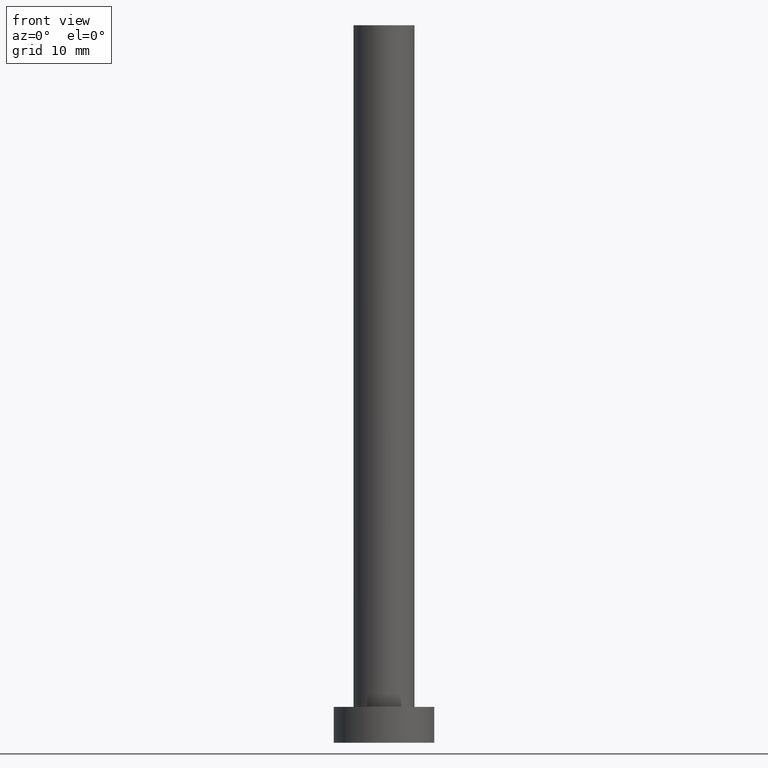
[diagram: clean part render]
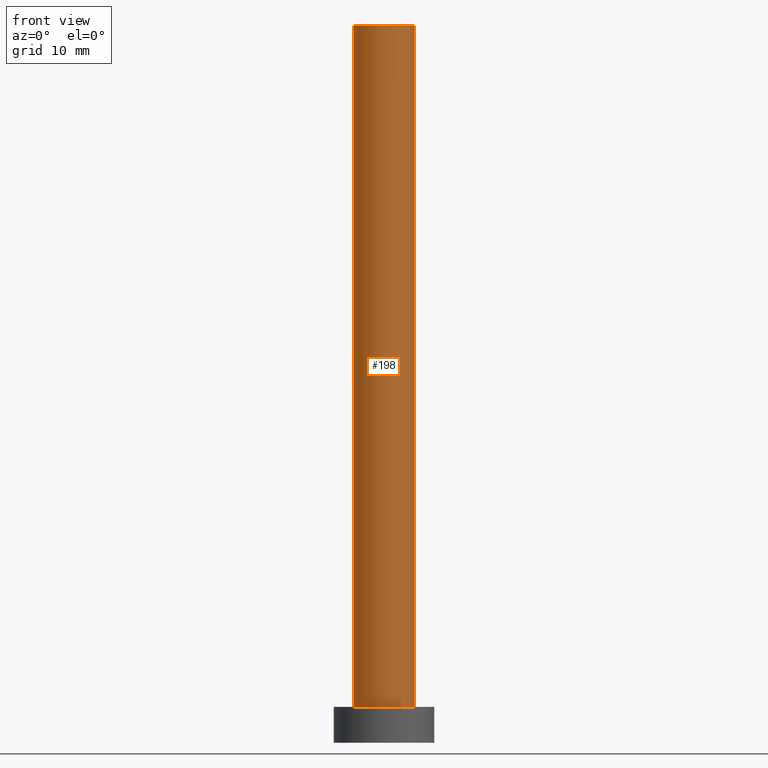
[diagram: same view with one face highlighted and labeled with its STEP entity id]
A machine part, front view. The second image highlights one B-rep face of the part: STEP entity #198.
In plain terms, the highlighted cylindrical surface (edge-blend (fillet) strip) has radius 4.25 mm, axis along (-0, -0, -1).
Its self-contained STEP definition (entity closure, byte-faithful):
#2 = VECTOR ( 'NONE', #132, 1000.000000000000000 ) ;
#18 = CIRCLE ( 'NONE', #206, 4.250000000000000000 ) ;
#20 = EDGE_CURVE ( 'NONE', #110, #254, #250, .T. ) ;
#21 = CARTESIAN_POINT ( 'NONE',  ( 0.000000000000000000, 0.000000000000000000, 100.0000000000000000 ) ) ;
#41 = DIRECTION ( 'NONE',  ( -0.000000000000000000, -0.000000000000000000, -1.000000000000000000 ) ) ;
#43 = AXIS2_PLACEMENT_3D ( 'NONE', #21, #143, #44 ) ;
#44 = DIRECTION ( 'NONE',  ( 1.000000000000000000, 0.000000000000000000, 0.000000000000000000 ) ) ;
#45 = EDGE_CURVE ( 'NONE', #73, #254, #18, .T. ) ;
#48 = CARTESIAN_POINT ( 'NONE',  ( 4.250000000000000000, 5.204748896376250699E-16, 5.000000000000000000 ) ) ;
#52 = CARTESIAN_POINT ( 'NONE',  ( -4.250000000000000000, 0.000000000000000000, 100.0000000000000000 ) ) ;
#54 = EDGE_LOOP ( 'NONE', ( #223, #95, #224, #78 ) ) ;
#58 = DIRECTION ( 'NONE',  ( 1.000000000000000000, 0.000000000000000000, 0.000000000000000000 ) ) ;
#66 = DIRECTION ( 'NONE',  ( -0.000000000000000000, -0.000000000000000000, -1.000000000000000000 ) ) ;
#68 = CARTESIAN_POINT ( 'NONE',  ( 0.000000000000000000, 0.000000000000000000, 100.0000000000000000 ) ) ;
#73 = VERTEX_POINT ( 'NONE', #122 ) ;
#78 = ORIENTED_EDGE ( 'NONE', *, *, #45, .T. ) ;
#95 = ORIENTED_EDGE ( 'NONE', *, *, #241, .F. ) ;
#99 = CYLINDRICAL_SURFACE ( 'NONE', #185, 4.250000000000000000 ) ;
#110 = VERTEX_POINT ( 'NONE', #217 ) ;
#119 = CARTESIAN_POINT ( 'NONE',  ( -4.250000000000000000, 0.000000000000000000, 100.0000000000000000 ) ) ;
#122 = CARTESIAN_POINT ( 'NONE',  ( -4.250000000000000000, 0.000000000000000000, 5.000000000000000000 ) ) ;
#127 = EDGE_CURVE ( 'NONE', #227, #73, #222, .T. ) ;
#132 = DIRECTION ( 'NONE',  ( -0.000000000000000000, -0.000000000000000000, -1.000000000000000000 ) ) ;
#135 = DIRECTION ( 'NONE',  ( 0.000000000000000000, 0.000000000000000000, 1.000000000000000000 ) ) ;
#140 = FACE_OUTER_BOUND ( 'NONE', #54, .T. ) ;
#143 = DIRECTION ( 'NONE',  ( 0.000000000000000000, 0.000000000000000000, 1.000000000000000000 ) ) ;
#144 = DIRECTION ( 'NONE',  ( -1.000000000000000000, 0.000000000000000000, 0.000000000000000000 ) ) ;
#155 = CARTESIAN_POINT ( 'NONE',  ( 4.250000000000000000, 5.204748896376250699E-16, 100.0000000000000000 ) ) ;
#185 = AXIS2_PLACEMENT_3D ( 'NONE', #68, #66, #144 ) ;
#198 = ADVANCED_FACE ( 'NONE', ( #140 ), #99, .T. ) ;
#201 = VECTOR ( 'NONE', #41, 1000.000000000000000 ) ;
#206 = AXIS2_PLACEMENT_3D ( 'NONE', #225, #135, #58 ) ;
#217 = CARTESIAN_POINT ( 'NONE',  ( 4.250000000000000000, 5.204748896376250699E-16, 100.0000000000000000 ) ) ;
#222 = LINE ( 'NONE', #52, #2 ) ;
#223 = ORIENTED_EDGE ( 'NONE', *, *, #20, .F. ) ;
#224 = ORIENTED_EDGE ( 'NONE', *, *, #127, .T. ) ;
#225 = CARTESIAN_POINT ( 'NONE',  ( 0.000000000000000000, 0.000000000000000000, 5.000000000000000000 ) ) ;
#227 = VERTEX_POINT ( 'NONE', #119 ) ;
#241 = EDGE_CURVE ( 'NONE', #227, #110, #252, .T. ) ;
#250 = LINE ( 'NONE', #155, #201 ) ;
#252 = CIRCLE ( 'NONE', #43, 4.250000000000000000 ) ;
#254 = VERTEX_POINT ( 'NONE', #48 ) ;